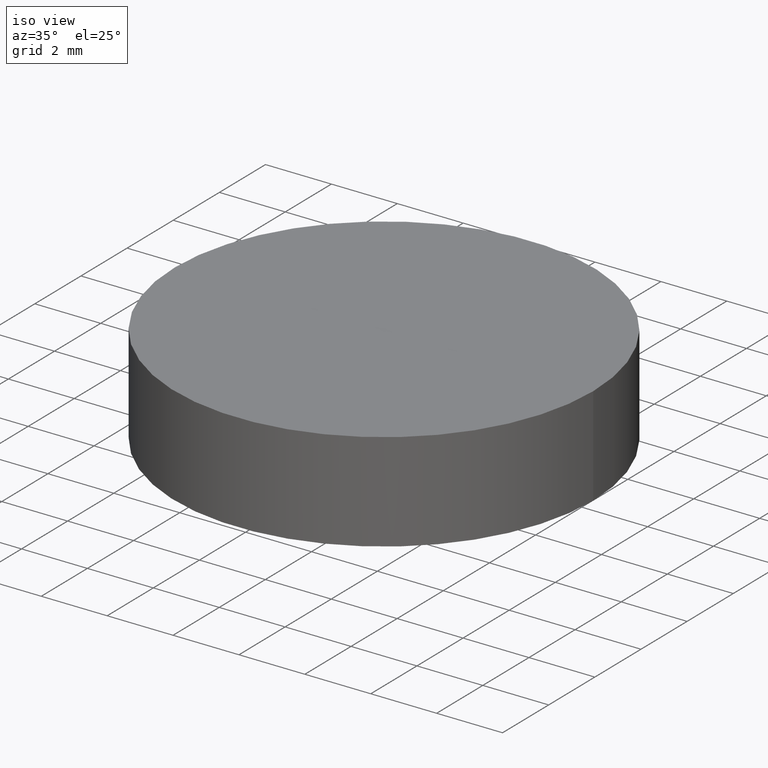
[diagram: clean part render]
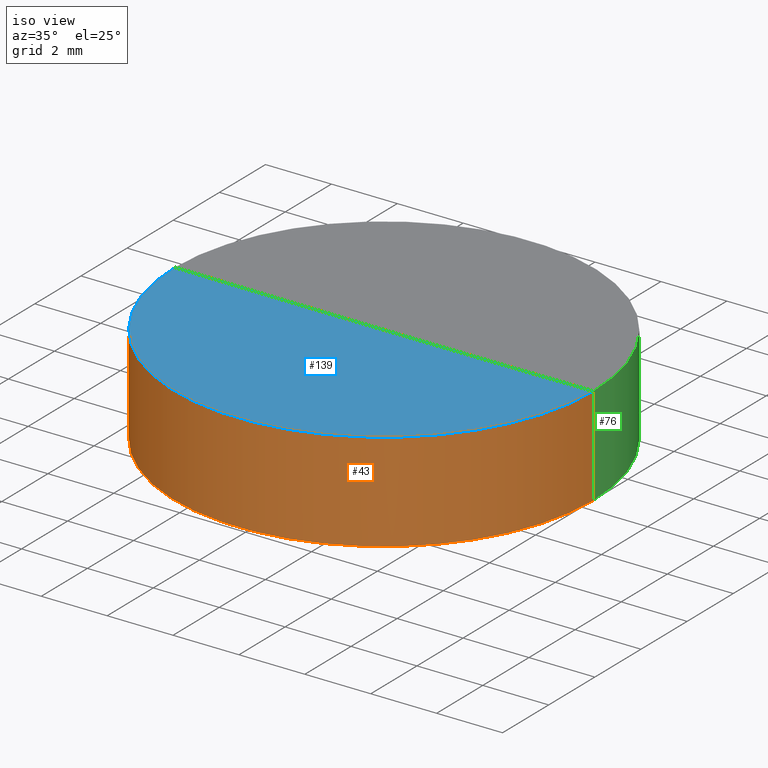
[diagram: same view with three faces highlighted in distinct colors, each labeled with its STEP entity id]
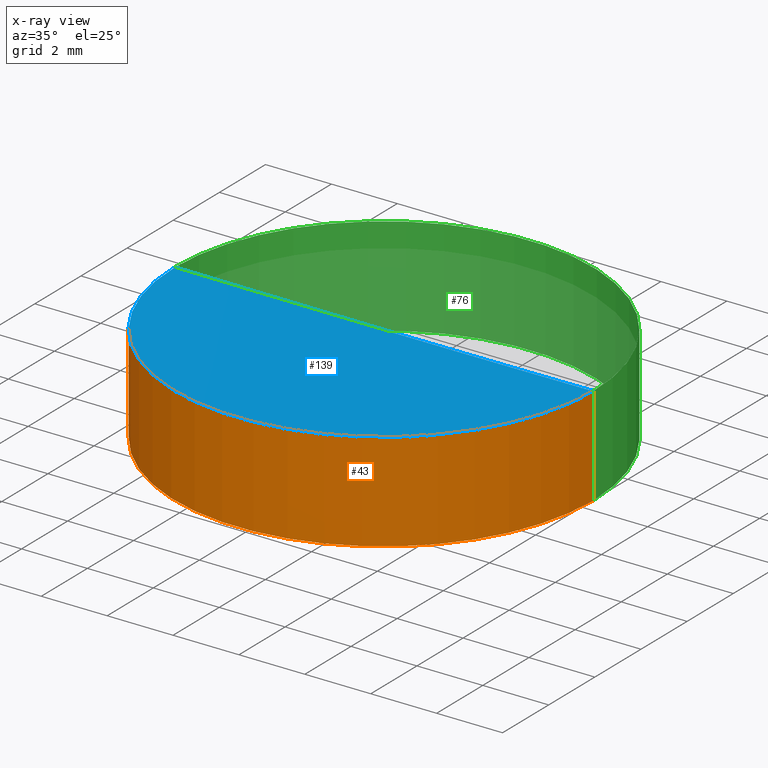
[diagram: x-ray of the same camera — body ghosted, the three highlighted faces saturated]
A machine part, iso view with three faces highlighted in distinct colors.
The next image is the same camera in x-ray (body ghosted, the three faces saturated) — at least one of them is partly hidden behind the body in this view.
Their STEP definitions:

[orange] entity #43 — the highlighted cylindrical surface (partial cylindrical patch) has radius 6.35 mm, axis along (-0, -0, -1).
#2 = DIRECTION ( 'NONE',  ( -0.000000000000000000, -0.000000000000000000, -1.000000000000000000 ) ) ;
#9 = EDGE_CURVE ( 'NONE', #71, #16, #12, .T. ) ;
#12 = LINE ( 'NONE', #195, #154 ) ;
#13 = ORIENTED_EDGE ( 'NONE', *, *, #153, .F. ) ;
#14 = ORIENTED_EDGE ( 'NONE', *, *, #9, .T. ) ;
#15 = CIRCLE ( 'NONE', #101, 6.349999999999999645 ) ;
#16 = VERTEX_POINT ( 'NONE', #58 ) ;
#27 = DIRECTION ( 'NONE',  ( -0.000000000000000000, -0.000000000000000000, -1.000000000000000000 ) ) ;
#37 = LINE ( 'NONE', #125, #91 ) ;
#43 = ADVANCED_FACE ( 'NONE', ( #167 ), #117, .T. ) ;
#45 = VERTEX_POINT ( 'NONE', #119 ) ;
#55 = AXIS2_PLACEMENT_3D ( 'NONE', #142, #2, #110 ) ;
#58 = CARTESIAN_POINT ( 'NONE',  ( -6.349999999999999645, 0.000000000000000000, 0.000000000000000000 ) ) ;
#62 = DIRECTION ( 'NONE',  ( -1.000000000000000000, 0.000000000000000000, 0.000000000000000000 ) ) ;
#64 = DIRECTION ( 'NONE',  ( 0.000000000000000000, 0.000000000000000000, 1.000000000000000000 ) ) ;
#71 = VERTEX_POINT ( 'NONE', #184 ) ;
#83 = CARTESIAN_POINT ( 'NONE',  ( 0.000000000000000000, 0.000000000000000000, 0.000000000000000000 ) ) ;
#88 = DIRECTION ( 'NONE',  ( -0.000000000000000000, -0.000000000000000000, -1.000000000000000000 ) ) ;
#91 = VECTOR ( 'NONE', #127, 1000.000000000000000 ) ;
#92 = VERTEX_POINT ( 'NONE', #126 ) ;
#101 = AXIS2_PLACEMENT_3D ( 'NONE', #83, #64, #109 ) ;
#109 = DIRECTION ( 'NONE',  ( 1.000000000000000000, 0.000000000000000000, 0.000000000000000000 ) ) ;
#110 = DIRECTION ( 'NONE',  ( 1.000000000000000000, 0.000000000000000000, 0.000000000000000000 ) ) ;
#113 = EDGE_CURVE ( 'NONE', #16, #92, #15, .T. ) ;
#114 = EDGE_LOOP ( 'NONE', ( #13, #165, #14, #183 ) ) ;
#117 = CYLINDRICAL_SURFACE ( 'NONE', #128, 6.349999999999999645 ) ;
#119 = CARTESIAN_POINT ( 'NONE',  ( 6.350000000006298606, 7.776507174593406237E-16, 3.000000000000002665 ) ) ;
#123 = CIRCLE ( 'NONE', #55, 6.350000000006174261 ) ;
#125 = CARTESIAN_POINT ( 'NONE',  ( 6.349999999999999645, 7.776507174585692163E-16, 3.000000000000000000 ) ) ;
#126 = CARTESIAN_POINT ( 'NONE',  ( 6.349999999999999645, 7.776507174585692163E-16, 0.000000000000000000 ) ) ;
#127 = DIRECTION ( 'NONE',  ( -0.000000000000000000, -0.000000000000000000, -1.000000000000000000 ) ) ;
#128 = AXIS2_PLACEMENT_3D ( 'NONE', #168, #88, #62 ) ;
#142 = CARTESIAN_POINT ( 'NONE',  ( 1.240327285323417073E-13, 0.000000000000000000, 3.000000000000002665 ) ) ;
#153 = EDGE_CURVE ( 'NONE', #45, #92, #37, .T. ) ;
#154 = VECTOR ( 'NONE', #27, 1000.000000000000000 ) ;
#165 = ORIENTED_EDGE ( 'NONE', *, *, #166, .T. ) ;
#166 = EDGE_CURVE ( 'NONE', #45, #71, #123, .T. ) ;
#167 = FACE_OUTER_BOUND ( 'NONE', #114, .T. ) ;
#168 = CARTESIAN_POINT ( 'NONE',  ( 0.000000000000000000, 0.000000000000000000, 3.000000000000000000 ) ) ;
#183 = ORIENTED_EDGE ( 'NONE', *, *, #113, .T. ) ;
#184 = CARTESIAN_POINT ( 'NONE',  ( -6.350000000006049916, 0.000000000000000000, 3.000000000000002665 ) ) ;
#195 = CARTESIAN_POINT ( 'NONE',  ( -6.349999999999999645, 0.000000000000000000, 3.000000000000000000 ) ) ;

[blue] entity #139 — the highlighted spherical surface has radius 1000 mm.
#2 = DIRECTION ( 'NONE',  ( -0.000000000000000000, -0.000000000000000000, -1.000000000000000000 ) ) ;
#17 = EDGE_CURVE ( 'NONE', #45, #134, #49, .T. ) ;
#19 = DIRECTION ( 'NONE',  ( 1.000000000000000000, 0.000000000000000000, 0.000000000000000000 ) ) ;
#24 = CIRCLE ( 'NONE', #140, 1000.000000000000000 ) ;
#42 = AXIS2_PLACEMENT_3D ( 'NONE', #95, #157, #19 ) ;
#45 = VERTEX_POINT ( 'NONE', #119 ) ;
#49 = CIRCLE ( 'NONE', #65, 1000.000000000000227 ) ;
#51 = DIRECTION ( 'NONE',  ( 1.000000000000000000, 1.224646799147353207E-16, 0.000000000000000000 ) ) ;
#55 = AXIS2_PLACEMENT_3D ( 'NONE', #142, #2, #110 ) ;
#65 = AXIS2_PLACEMENT_3D ( 'NONE', #182, #72, #196 ) ;
#71 = VERTEX_POINT ( 'NONE', #184 ) ;
#72 = DIRECTION ( 'NONE',  ( 0.000000000000000000, 1.000000000000000000, -0.000000000000000000 ) ) ;
#77 = DIRECTION ( 'NONE',  ( 1.224646799147353207E-16, -1.000000000000000000, 0.000000000000000000 ) ) ;
#80 = SPHERICAL_SURFACE ( 'NONE', #42, 1000.000000000000000 ) ;
#95 = CARTESIAN_POINT ( 'NONE',  ( 1.240327285323417073E-13, 0.000000000000000000, 1002.979838546757833 ) ) ;
#96 = CARTESIAN_POINT ( 'NONE',  ( 1.852650684897093823E-13, 0.000000000000000000, 2.979838546757873630 ) ) ;
#110 = DIRECTION ( 'NONE',  ( 1.000000000000000000, 0.000000000000000000, 0.000000000000000000 ) ) ;
#119 = CARTESIAN_POINT ( 'NONE',  ( 6.350000000006298606, 7.776507174593406237E-16, 3.000000000000002665 ) ) ;
#120 = ORIENTED_EDGE ( 'NONE', *, *, #194, .F. ) ;
#123 = CIRCLE ( 'NONE', #55, 6.350000000006174261 ) ;
#134 = VERTEX_POINT ( 'NONE', #96 ) ;
#139 = ADVANCED_FACE ( 'NONE', ( #143 ), #80, .F. ) ;
#140 = AXIS2_PLACEMENT_3D ( 'NONE', #161, #77, #51 ) ;
#142 = CARTESIAN_POINT ( 'NONE',  ( 1.240327285323417073E-13, 0.000000000000000000, 3.000000000000002665 ) ) ;
#143 = FACE_OUTER_BOUND ( 'NONE', #199, .T. ) ;
#152 = ORIENTED_EDGE ( 'NONE', *, *, #17, .T. ) ;
#157 = DIRECTION ( 'NONE',  ( 0.000000000000000000, -1.000000000000000000, -0.000000000000000000 ) ) ;
#161 = CARTESIAN_POINT ( 'NONE',  ( 1.240327285323417073E-13, 0.000000000000000000, 1002.979838546757833 ) ) ;
#166 = EDGE_CURVE ( 'NONE', #45, #71, #123, .T. ) ;
#171 = ORIENTED_EDGE ( 'NONE', *, *, #166, .F. ) ;
#182 = CARTESIAN_POINT ( 'NONE',  ( 1.240327285323417073E-13, 0.000000000000000000, 1002.979838546757833 ) ) ;
#184 = CARTESIAN_POINT ( 'NONE',  ( -6.350000000006049916, 0.000000000000000000, 3.000000000000002665 ) ) ;
#194 = EDGE_CURVE ( 'NONE', #71, #134, #24, .T. ) ;
#196 = DIRECTION ( 'NONE',  ( 0.000000000000000000, 0.000000000000000000, 1.000000000000000000 ) ) ;
#199 = EDGE_LOOP ( 'NONE', ( #120, #171, #152 ) ) ;

[green] entity #76 — the highlighted cylindrical surface (partial cylindrical patch) has radius 6.35 mm, axis along (-0, -0, -1).
#1 = AXIS2_PLACEMENT_3D ( 'NONE', #169, #28, #90 ) ;
#9 = EDGE_CURVE ( 'NONE', #71, #16, #12, .T. ) ;
#10 = AXIS2_PLACEMENT_3D ( 'NONE', #22, #21, #124 ) ;
#12 = LINE ( 'NONE', #195, #154 ) ;
#16 = VERTEX_POINT ( 'NONE', #58 ) ;
#21 = DIRECTION ( 'NONE',  ( 0.000000000000000000, 0.000000000000000000, 1.000000000000000000 ) ) ;
#22 = CARTESIAN_POINT ( 'NONE',  ( 0.000000000000000000, 0.000000000000000000, 0.000000000000000000 ) ) ;
#27 = DIRECTION ( 'NONE',  ( -0.000000000000000000, -0.000000000000000000, -1.000000000000000000 ) ) ;
#28 = DIRECTION ( 'NONE',  ( -0.000000000000000000, -0.000000000000000000, -1.000000000000000000 ) ) ;
#31 = EDGE_LOOP ( 'NONE', ( #40, #102, #57, #41 ) ) ;
#37 = LINE ( 'NONE', #125, #91 ) ;
#40 = ORIENTED_EDGE ( 'NONE', *, *, #200, .T. ) ;
#41 = ORIENTED_EDGE ( 'NONE', *, *, #9, .F. ) ;
#44 = FACE_OUTER_BOUND ( 'NONE', #31, .T. ) ;
#45 = VERTEX_POINT ( 'NONE', #119 ) ;
#57 = ORIENTED_EDGE ( 'NONE', *, *, #155, .T. ) ;
#58 = CARTESIAN_POINT ( 'NONE',  ( -6.349999999999999645, 0.000000000000000000, 0.000000000000000000 ) ) ;
#66 = CARTESIAN_POINT ( 'NONE',  ( 1.240327285323417073E-13, 0.000000000000000000, 3.000000000000002665 ) ) ;
#71 = VERTEX_POINT ( 'NONE', #184 ) ;
#76 = ADVANCED_FACE ( 'NONE', ( #44 ), #104, .T. ) ;
#78 = DIRECTION ( 'NONE',  ( -0.000000000000000000, -0.000000000000000000, -1.000000000000000000 ) ) ;
#90 = DIRECTION ( 'NONE',  ( -1.000000000000000000, 0.000000000000000000, 0.000000000000000000 ) ) ;
#91 = VECTOR ( 'NONE', #127, 1000.000000000000000 ) ;
#92 = VERTEX_POINT ( 'NONE', #126 ) ;
#97 = CIRCLE ( 'NONE', #10, 6.349999999999999645 ) ;
#102 = ORIENTED_EDGE ( 'NONE', *, *, #153, .T. ) ;
#104 = CYLINDRICAL_SURFACE ( 'NONE', #1, 6.349999999999999645 ) ;
#108 = DIRECTION ( 'NONE',  ( 1.000000000000000000, 0.000000000000000000, 0.000000000000000000 ) ) ;
#119 = CARTESIAN_POINT ( 'NONE',  ( 6.350000000006298606, 7.776507174593406237E-16, 3.000000000000002665 ) ) ;
#121 = AXIS2_PLACEMENT_3D ( 'NONE', #66, #78, #108 ) ;
#124 = DIRECTION ( 'NONE',  ( 1.000000000000000000, 0.000000000000000000, 0.000000000000000000 ) ) ;
#125 = CARTESIAN_POINT ( 'NONE',  ( 6.349999999999999645, 7.776507174585692163E-16, 3.000000000000000000 ) ) ;
#126 = CARTESIAN_POINT ( 'NONE',  ( 6.349999999999999645, 7.776507174585692163E-16, 0.000000000000000000 ) ) ;
#127 = DIRECTION ( 'NONE',  ( -0.000000000000000000, -0.000000000000000000, -1.000000000000000000 ) ) ;
#153 = EDGE_CURVE ( 'NONE', #45, #92, #37, .T. ) ;
#154 = VECTOR ( 'NONE', #27, 1000.000000000000000 ) ;
#155 = EDGE_CURVE ( 'NONE', #92, #16, #97, .T. ) ;
#169 = CARTESIAN_POINT ( 'NONE',  ( 0.000000000000000000, 0.000000000000000000, 3.000000000000000000 ) ) ;
#184 = CARTESIAN_POINT ( 'NONE',  ( -6.350000000006049916, 0.000000000000000000, 3.000000000000002665 ) ) ;
#195 = CARTESIAN_POINT ( 'NONE',  ( -6.349999999999999645, 0.000000000000000000, 3.000000000000000000 ) ) ;
#198 = CIRCLE ( 'NONE', #121, 6.350000000006174261 ) ;
#200 = EDGE_CURVE ( 'NONE', #71, #45, #198, .T. ) ;